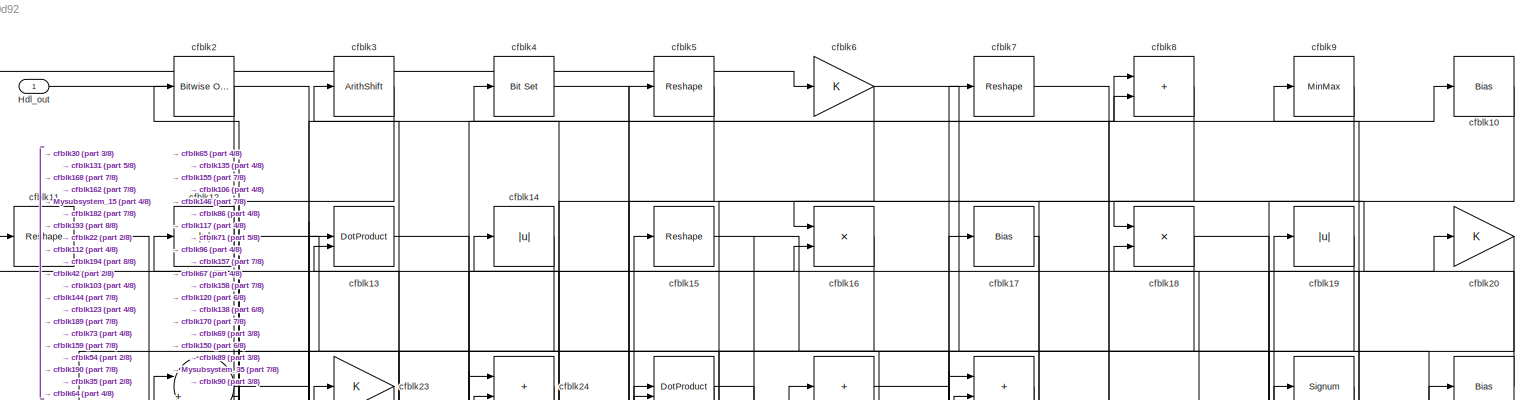
[diagram: root canvas - part 1/8, full width, top band]
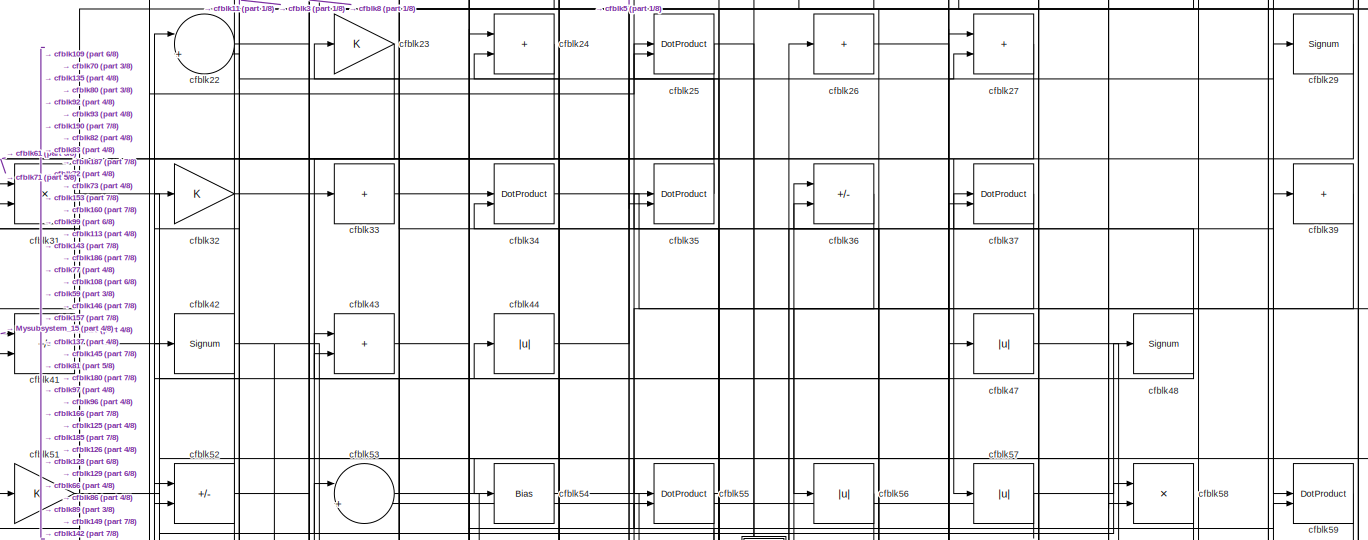
[diagram: root canvas - part 2/8, full width, top band]
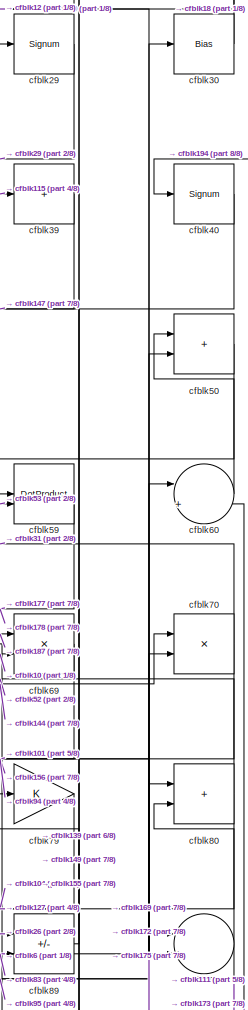
[diagram: root canvas - part 3/8, top right region]
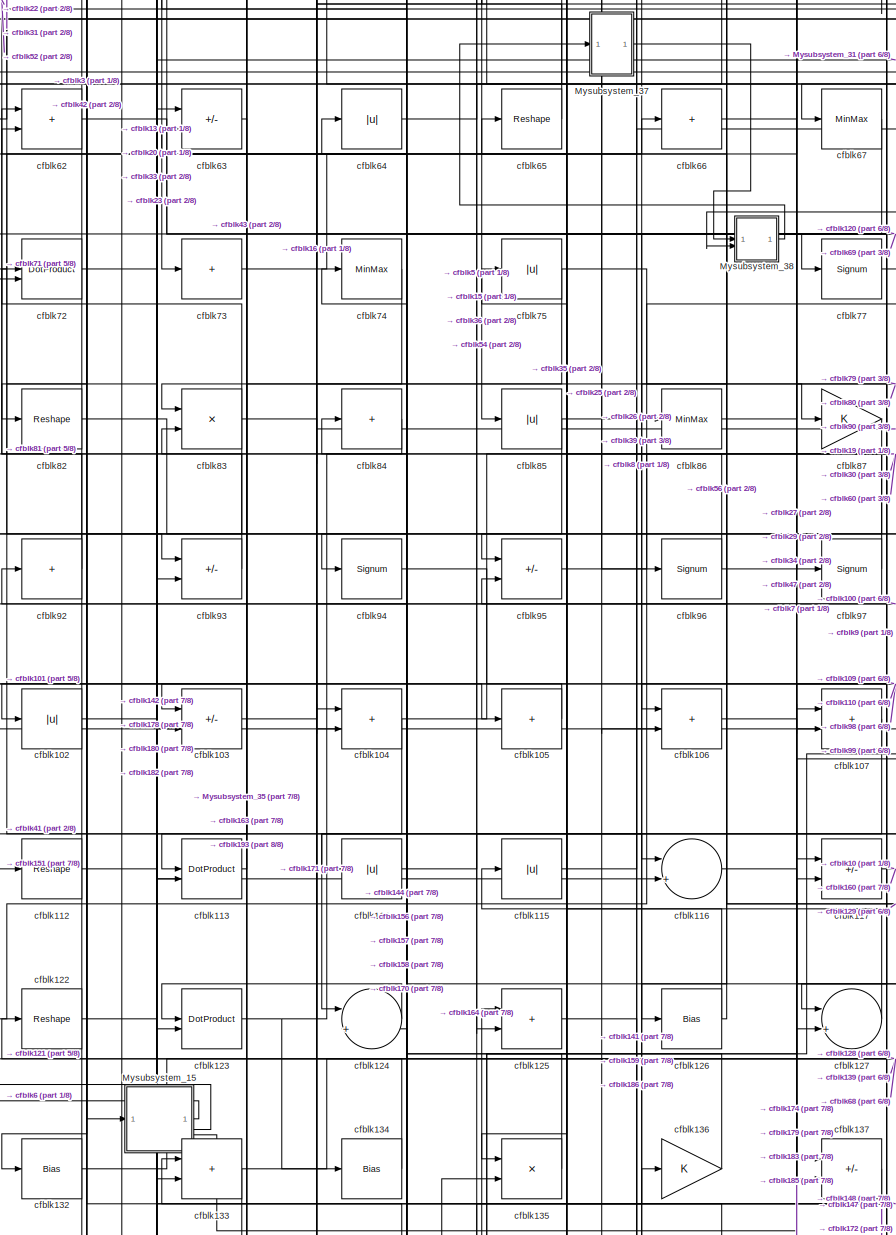
[diagram: root canvas - part 4/8, central region]
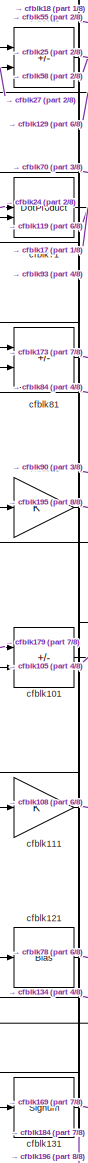
[diagram: root canvas - part 5/8, middle left region]
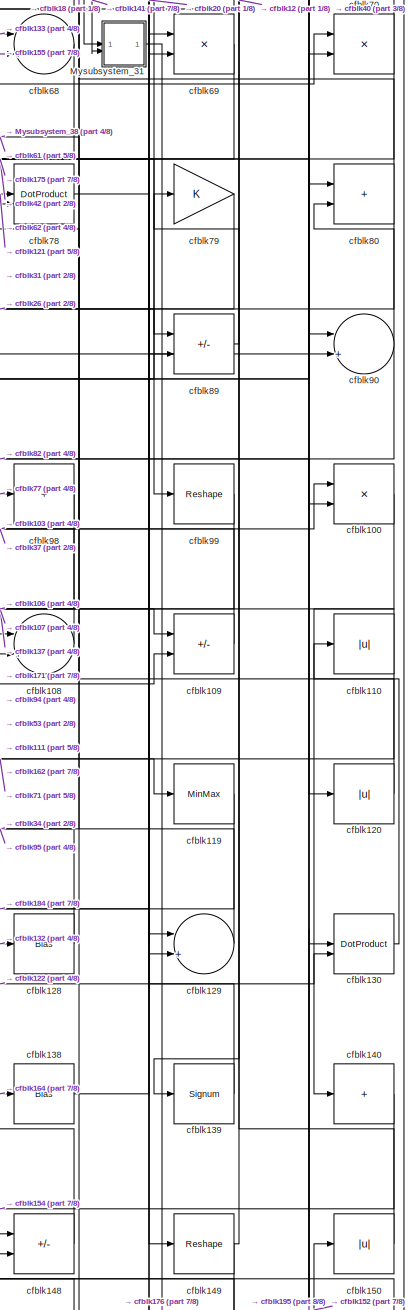
[diagram: root canvas - part 6/8, middle right region]
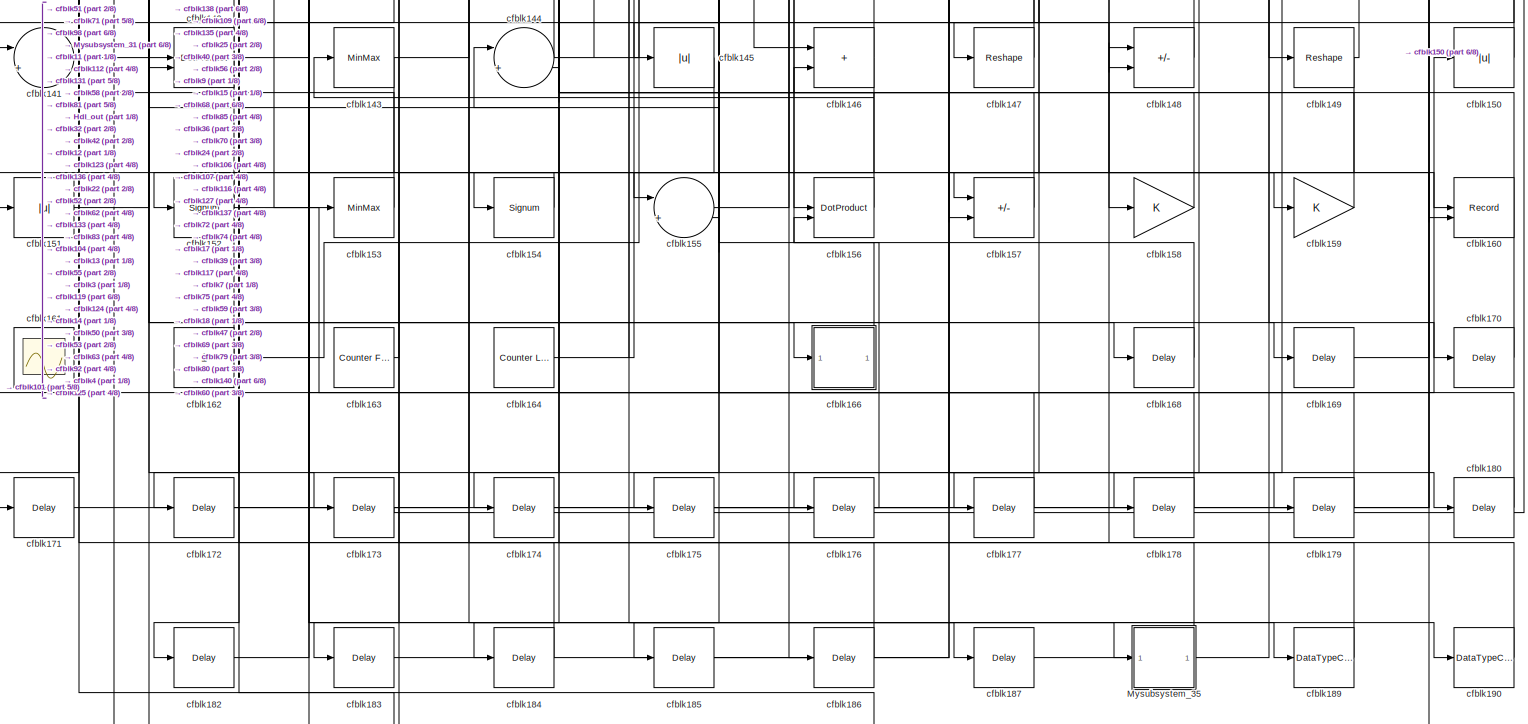
[diagram: root canvas - part 7/8, full width, bottom band]
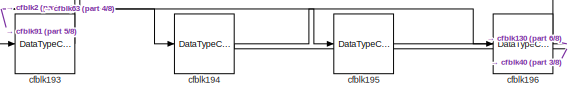
[diagram: root canvas - part 8/8, bottom center region]
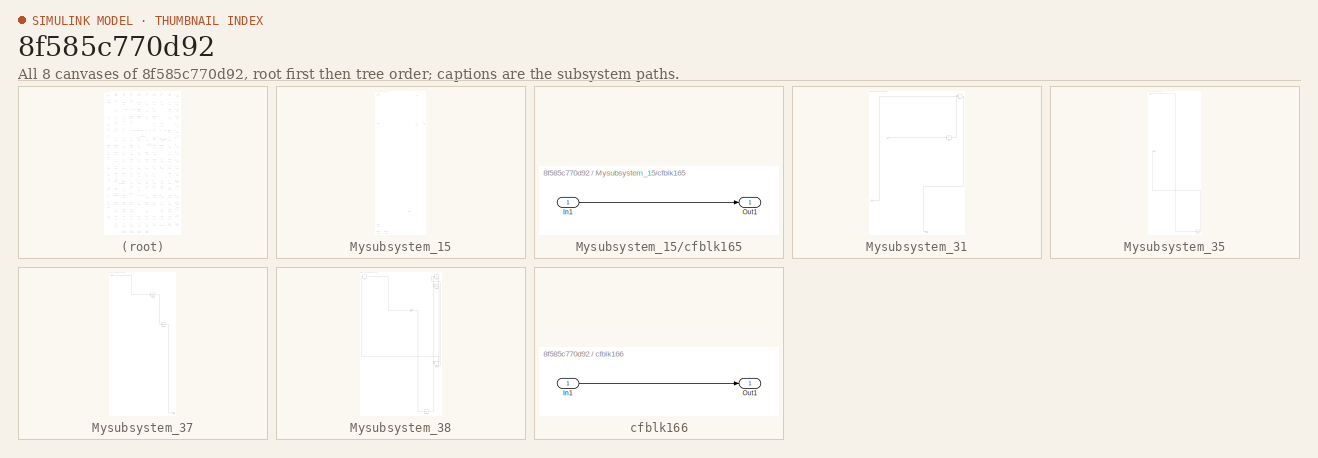
[diagram: thumbnail index - all 8 canvases of the model, root first then tree order]
MODEL slx_8f585c770d92
KIND model
CONFIG AbsTol = auto
CONFIG EnableMultiTasking = off
CONFIG FixedStep = auto
CONFIG MaxStep = auto
CONFIG MinStep = auto
CONFIG RelTol = 1e-3
CONFIG SampleTimeConstraint = Unconstrained
CONFIG SolverName = VariableStepAuto
CONFIG StartTime = 0.0
CONFIG StopTime = 10.0
BLOCK [Outport] Hdl_out
  OutDataTypeStr = uint8
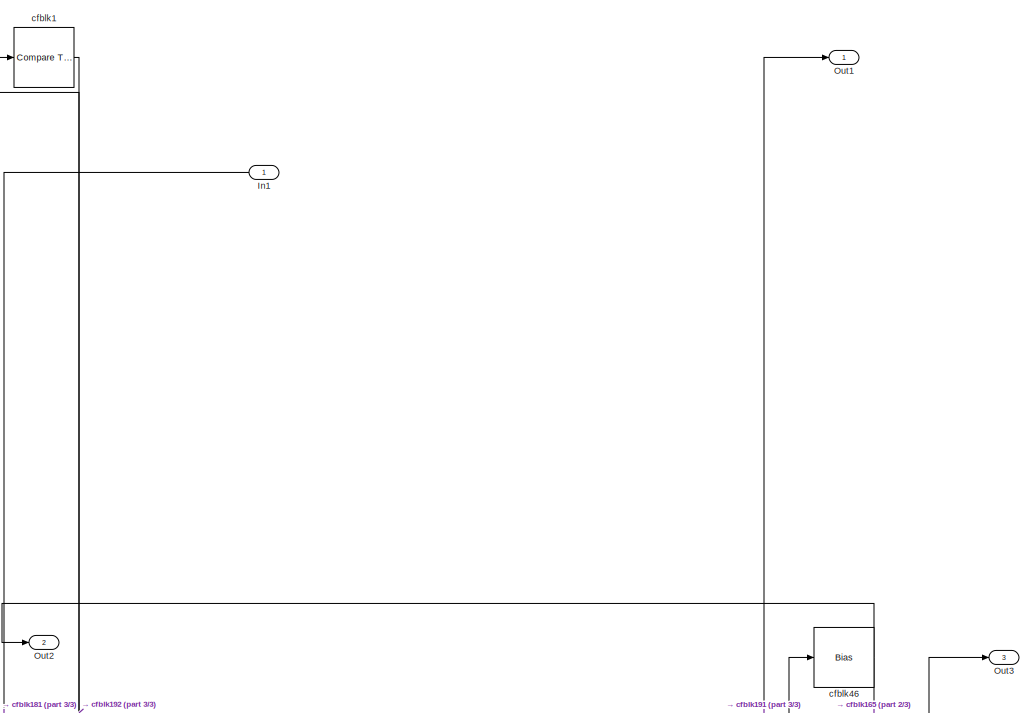
[diagram: Mysubsystem_15 - part 1/3, full width, top band]
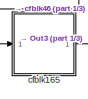
[diagram: Mysubsystem_15 - part 2/3, bottom center region]
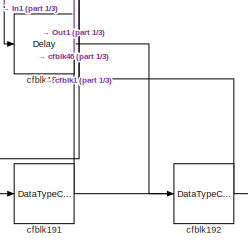
[diagram: Mysubsystem_15 - part 3/3, bottom left region]
BLOCK [SubSystem] Mysubsystem_15
  RTWFcnName = Mysubsystem_15
  RTWFcnNameOpts = User specified
  RTWFileNameOpts = Use function name
  RTWSystemCode = Reusable function
  TreatAsAtomicUnit = on
BLOCK [Inport] Mysubsystem_15/In1
BLOCK [Outport] Mysubsystem_15/Out1
BLOCK [Outport] Mysubsystem_15/Out2
  Port = 2
BLOCK [Outport] Mysubsystem_15/Out3
  Port = 3
BLOCK [Reference] Mysubsystem_15/cfblk1  REF=hdlsllib/Logic and Bit
Operations/Compare
To Zero
  SourceBlock = hdlsllib/Logic and Bit\nOperations/Compare\nTo Zero
  SourceType = Compare To Zero
BLOCK [SubSystem] Mysubsystem_15/cfblk165
  LibrarySourceBlock = hdlsllib/Ports &\nSubsystems/Subsystem
BLOCK [Inport] Mysubsystem_15/cfblk165/In1
BLOCK [Outport] Mysubsystem_15/cfblk165/Out1
BLOCK [Delay] Mysubsystem_15/cfblk181
  InputPortMap = u0
  SampleTime = 1
BLOCK [DataTypeConversion] Mysubsystem_15/cfblk191
  RndMeth = Floor
  SaturateOnIntegerOverflow = off
BLOCK [DataTypeConversion] Mysubsystem_15/cfblk192
  OutDataTypeStr = uint8
  RndMeth = Floor
  SaturateOnIntegerOverflow = off
BLOCK [Bias] Mysubsystem_15/cfblk46
  Bias = 0.0
  SaturateOnIntegerOverflow = off
BLOCK [SubSystem] Mysubsystem_31
  RTWFcnName = Mysubsystem_31
  RTWFcnNameOpts = User specified
  RTWFileNameOpts = Use function name
  RTWSystemCode = Reusable function
  TreatAsAtomicUnit = on
BLOCK [Inport] Mysubsystem_31/In1
BLOCK [Inport] Mysubsystem_31/In2
  Port = 2
BLOCK [Outport] Mysubsystem_31/Out1
BLOCK [Product] Mysubsystem_31/cfblk49
  Inputs = */
  RndMeth = Zero
  SaturateOnIntegerOverflow = on
BLOCK [Abs] Mysubsystem_31/cfblk88
  SaturateOnIntegerOverflow = off
BLOCK [SubSystem] Mysubsystem_35
  RTWFcnName = Mysubsystem_35
  RTWFcnNameOpts = User specified
  RTWFileNameOpts = Use function name
  RTWSystemCode = Reusable function
  TreatAsAtomicUnit = on
BLOCK [Inport] Mysubsystem_35/In1
BLOCK [Outport] Mysubsystem_35/Out1
BLOCK [Delay] Mysubsystem_35/cfblk188
  InputPortMap = u0
  SampleTime = 1
BLOCK [SubSystem] Mysubsystem_37
  RTWFcnName = Mysubsystem_37
  RTWFcnNameOpts = User specified
  RTWFileNameOpts = Use function name
  RTWSystemCode = Reusable function
  TreatAsAtomicUnit = on
BLOCK [Inport] Mysubsystem_37/In1
BLOCK [Outport] Mysubsystem_37/Out1
BLOCK [MinMax] Mysubsystem_37/cfblk45
BLOCK [MinMax] Mysubsystem_37/cfblk76
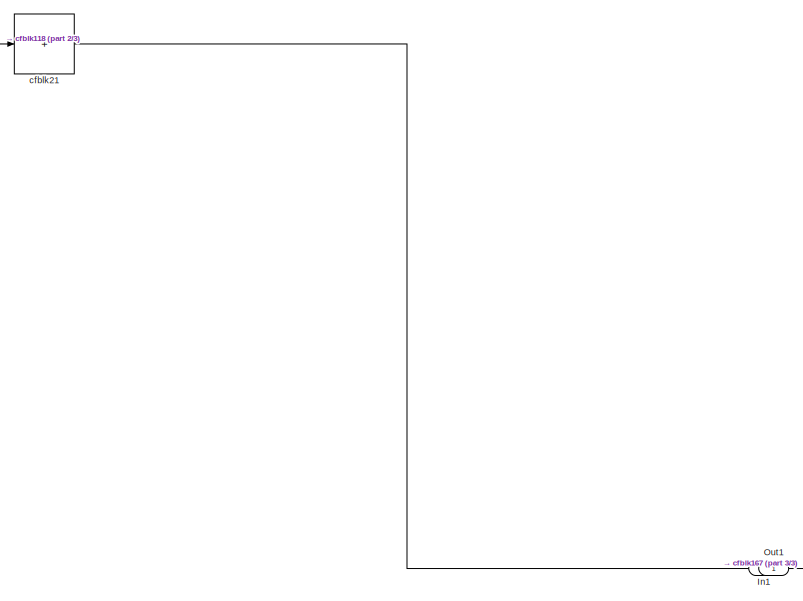
[diagram: Mysubsystem_38 - part 1/3, top center region]
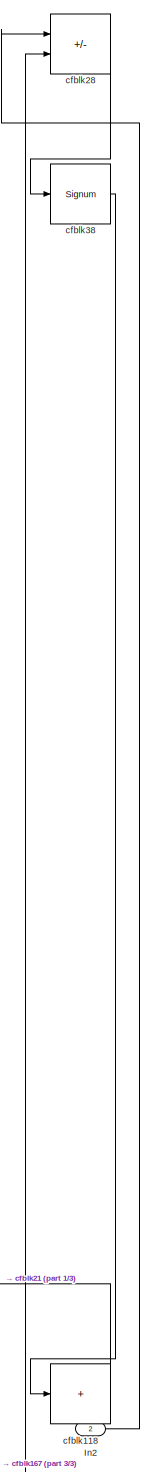
[diagram: Mysubsystem_38 - part 2/3, middle right region]
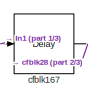
[diagram: Mysubsystem_38 - part 3/3, bottom right region]
BLOCK [SubSystem] Mysubsystem_38
  RTWFcnName = Mysubsystem_38
  RTWFcnNameOpts = User specified
  RTWFileNameOpts = Use function name
  RTWSystemCode = Reusable function
  TreatAsAtomicUnit = on
BLOCK [Inport] Mysubsystem_38/In1
BLOCK [Inport] Mysubsystem_38/In2
  Port = 2
BLOCK [Outport] Mysubsystem_38/Out1
BLOCK [Sum] Mysubsystem_38/cfblk118
  IconShape = rectangular
  Inputs = +
BLOCK [Delay] Mysubsystem_38/cfblk167
  InputPortMap = u0
  SampleTime = 1
BLOCK [Sum] Mysubsystem_38/cfblk21
  IconShape = rectangular
  Inputs = +
BLOCK [Sum] Mysubsystem_38/cfblk28
  IconShape = rectangular
  Inputs = +-
BLOCK [Signum] Mysubsystem_38/cfblk38
BLOCK [Bias] cfblk10
  Bias = 0.0
  SaturateOnIntegerOverflow = off
BLOCK [Product] cfblk100
  Inputs = */
  OutDataTypeStr = uint8
  RndMeth = Zero
  SaturateOnIntegerOverflow = on
BLOCK [Sum] cfblk101
  IconShape = rectangular
  Inputs = +-
  OutDataTypeStr = uint8
BLOCK [Abs] cfblk102
  OutDataTypeStr = uint8
  SaturateOnIntegerOverflow = off
BLOCK [Sum] cfblk103
  IconShape = rectangular
  Inputs = +-
  OutDataTypeStr = uint8
BLOCK [Sum] cfblk104
  IconShape = rectangular
  OutDataTypeStr = uint8
BLOCK [Sum] cfblk105
  IconShape = rectangular
  Inputs = +
  OutDataTypeStr = uint8
BLOCK [Sum] cfblk106
  IconShape = rectangular
  OutDataTypeStr = uint8
BLOCK [Sum] cfblk107
  IconShape = rectangular
  OutDataTypeStr = uint8
BLOCK [Sum] cfblk108
  Inputs = |++
  OutDataTypeStr = uint8
BLOCK [Sum] cfblk109
  IconShape = rectangular
  Inputs = +-
  OutDataTypeStr = uint8
BLOCK [Reshape] cfblk11
BLOCK [Abs] cfblk110
  OutDataTypeStr = uint8
  SaturateOnIntegerOverflow = off
BLOCK [Gain] cfblk111
  OutDataTypeStr = uint8
BLOCK [Reshape] cfblk112
BLOCK [DotProduct] cfblk113
  OutDataTypeStr = uint8
BLOCK [Abs] cfblk114
  OutDataTypeStr = uint8
  SaturateOnIntegerOverflow = off
BLOCK [Abs] cfblk115
  OutDataTypeStr = uint8
  SaturateOnIntegerOverflow = off
BLOCK [Sum] cfblk116
  Inputs = |++
  OutDataTypeStr = uint8
BLOCK [Sum] cfblk117
  IconShape = rectangular
  Inputs = +-
  OutDataTypeStr = uint8
BLOCK [MinMax] cfblk119
  OutDataTypeStr = uint8
BLOCK [Abs] cfblk12
  OutDataTypeStr = uint8
  SaturateOnIntegerOverflow = off
BLOCK [Abs] cfblk120
  OutDataTypeStr = uint8
  SaturateOnIntegerOverflow = off
BLOCK [Bias] cfblk121
  Bias = 0.0
  SaturateOnIntegerOverflow = off
BLOCK [Reshape] cfblk122
BLOCK [DotProduct] cfblk123
  OutDataTypeStr = uint8
BLOCK [Sum] cfblk124
  Inputs = |++
  OutDataTypeStr = uint8
BLOCK [Sum] cfblk125
  IconShape = rectangular
  OutDataTypeStr = uint8
BLOCK [Bias] cfblk126
  Bias = 0.0
  SaturateOnIntegerOverflow = off
BLOCK [Sum] cfblk127
  Inputs = |++
  OutDataTypeStr = uint8
BLOCK [Bias] cfblk128
  Bias = 0.0
  SaturateOnIntegerOverflow = off
BLOCK [Sum] cfblk129
  Inputs = |++
  OutDataTypeStr = uint8
BLOCK [DotProduct] cfblk13
  OutDataTypeStr = uint8
BLOCK [DotProduct] cfblk130
  OutDataTypeStr = uint8
BLOCK [Signum] cfblk131
BLOCK [Bias] cfblk132
  Bias = 0.0
  SaturateOnIntegerOverflow = off
BLOCK [Sum] cfblk133
  IconShape = rectangular
  OutDataTypeStr = uint8
BLOCK [Bias] cfblk134
  Bias = 0.0
  SaturateOnIntegerOverflow = off
BLOCK [Product] cfblk135
  Inputs = */
  OutDataTypeStr = uint8
  RndMeth = Zero
  SaturateOnIntegerOverflow = on
BLOCK [Gain] cfblk136
  OutDataTypeStr = uint8
BLOCK [Sum] cfblk137
  IconShape = rectangular
  Inputs = +-
  OutDataTypeStr = uint8
BLOCK [Bias] cfblk138
  Bias = 0.0
  SaturateOnIntegerOverflow = off
BLOCK [Signum] cfblk139
BLOCK [Abs] cfblk14
  OutDataTypeStr = uint8
  SaturateOnIntegerOverflow = off
BLOCK [Sum] cfblk140
  IconShape = rectangular
  Inputs = +
  OutDataTypeStr = uint8
BLOCK [Sum] cfblk141
  Inputs = |++
  OutDataTypeStr = uint8
BLOCK [DotProduct] cfblk142
  OutDataTypeStr = uint8
BLOCK [MinMax] cfblk143
  OutDataTypeStr = uint8
BLOCK [Sum] cfblk144
  Inputs = |++
  OutDataTypeStr = uint8
BLOCK [Abs] cfblk145
  OutDataTypeStr = uint8
  SaturateOnIntegerOverflow = off
BLOCK [Sum] cfblk146
  IconShape = rectangular
  OutDataTypeStr = uint8
BLOCK [Reshape] cfblk147
BLOCK [Sum] cfblk148
  IconShape = rectangular
  Inputs = +-
  OutDataTypeStr = uint8
BLOCK [Reshape] cfblk149
BLOCK [Reshape] cfblk15
BLOCK [Abs] cfblk150
  OutDataTypeStr = uint8
  SaturateOnIntegerOverflow = off
BLOCK [Abs] cfblk151
  OutDataTypeStr = uint8
  SaturateOnIntegerOverflow = off
BLOCK [Signum] cfblk152
BLOCK [MinMax] cfblk153
  OutDataTypeStr = uint8
BLOCK [Signum] cfblk154
BLOCK [Sum] cfblk155
  Inputs = |++
  OutDataTypeStr = uint8
BLOCK [DotProduct] cfblk156
  OutDataTypeStr = uint8
BLOCK [Sum] cfblk157
  IconShape = rectangular
  Inputs = +-
  OutDataTypeStr = uint8
BLOCK [Gain] cfblk158
  OutDataTypeStr = uint8
BLOCK [Gain] cfblk159
  OutDataTypeStr = uint8
BLOCK [Product] cfblk16
  Inputs = */
  OutDataTypeStr = uint8
  RndMeth = Zero
  SaturateOnIntegerOverflow = on
BLOCK [Record] cfblk160
  CompatibilityTag = XY
  FileSettingsInternal = {"entries":[{"content":{"excelSettings":{"content":{},"type":"Streamout.ExcelSettings"}},"type":"Streamout.FileSettingStorage","uuid":""}],"packageUris":["http:\/\/schema.mathworks.com\/mf0\/streamout_blocks\/R2020a"],"version":"1.0"}
  Layout = [1 1]
  SignalsInternal = {"entries":[{"content":{"signals":[{"content":{"blockPath":[],"dimensions":[1],"domain":"","lineColor":"#a2142f","plots":[1],"port":1,"signalID":58101,"signalName":"cfblk117"},"type":"RecordBlkView.Signal","uuid":""},{"content":{"blockPath":[],"dimensions":[1],"domain":"","lineColor":"#139fff","plots":[1],"port":2,"signalID":58104,"signalName":"cfblk42"},"type":"RecordBlkView.Signal","uuid":""}]},...<+143ch>
  VisualizationBindings = {"xyplotplugin":{"info":[{"series":[{"bindingParametersList":[{"parameter":"X-Axis","signalID":58101,"signalName":"cfblk117"},{"parameter":"Y-Axis","signalID":58104,"signalName":"cfblk42"}],"seriesID":28550}],"subplotID":1}]}}
  st = -1
BLOCK [Scope] cfblk161
  Floating = on
  NumInputPorts = 1
  ScopeSpecificationString = Simulink.scopes.TimeScopeBlockCfg('CurrentConfiguration', extmgr.ConfigurationSet(extmgr.Configuration('Core','General UI',true,'FigureColor',[0.156862745098039 0.156862745098039 0.156862745098039]),extmgr.Configuration('Core','Source UI',true),extmgr.Configuration('Sources','WiredSimulink',true,'DataLoggingVariableName','ScopeData1','DataLoggingSaveFormat','StructureWithTime','DataLoggingLimitDat...<+2713ch>
BLOCK [Constant] cfblk162
  OutDataTypeStr = uint8
  SampleTime = -1
BLOCK [Reference] cfblk163  REF=hdlsllib/Sources/Counter
Free-Running
  SourceBlock = hdlsllib/Sources/Counter\nFree-Running
  SourceType = Counter Free-Running
BLOCK [Reference] cfblk164  REF=hdlsllib/Sources/Counter
Limited
  SourceBlock = hdlsllib/Sources/Counter\nLimited
  SourceType = Counter Limited
BLOCK [SubSystem] cfblk166
  LibrarySourceBlock = hdlsllib/Ports &\nSubsystems/Subsystem
BLOCK [Inport] cfblk166/In1
BLOCK [Outport] cfblk166/Out1
BLOCK [Delay] cfblk168
  InputPortMap = u0
  SampleTime = 1
BLOCK [Delay] cfblk169
  InputPortMap = u0
  SampleTime = 1
BLOCK [Bias] cfblk17
  Bias = 0.0
  SaturateOnIntegerOverflow = off
BLOCK [Delay] cfblk170
  InputPortMap = u0
  SampleTime = 1
BLOCK [Delay] cfblk171
  InputPortMap = u0
  SampleTime = 1
BLOCK [Delay] cfblk172
  InputPortMap = u0
  SampleTime = 1
BLOCK [Delay] cfblk173
  InputPortMap = u0
  SampleTime = 1
BLOCK [Delay] cfblk174
  InputPortMap = u0
  SampleTime = 1
BLOCK [Delay] cfblk175
  InputPortMap = u0
  SampleTime = 1
BLOCK [Delay] cfblk176
  InputPortMap = u0
  SampleTime = 1
BLOCK [Delay] cfblk177
  InputPortMap = u0
  SampleTime = 1
BLOCK [Delay] cfblk178
  InputPortMap = u0
  SampleTime = 1
BLOCK [Delay] cfblk179
  InputPortMap = u0
  SampleTime = 1
BLOCK [Product] cfblk18
  Inputs = */
  OutDataTypeStr = uint8
  RndMeth = Zero
  SaturateOnIntegerOverflow = on
BLOCK [Delay] cfblk180
  InputPortMap = u0
  SampleTime = 1
BLOCK [Delay] cfblk182
  InputPortMap = u0
  SampleTime = 1
BLOCK [Delay] cfblk183
  InputPortMap = u0
  SampleTime = 1
BLOCK [Delay] cfblk184
  InputPortMap = u0
  SampleTime = 1
BLOCK [Delay] cfblk185
  InputPortMap = u0
  SampleTime = 1
BLOCK [Delay] cfblk186
  InputPortMap = u0
  SampleTime = 1
BLOCK [Delay] cfblk187
  InputPortMap = u0
  SampleTime = 1
BLOCK [DataTypeConversion] cfblk189
  OutDataTypeStr = uint8
  RndMeth = Floor
  SaturateOnIntegerOverflow = off
BLOCK [Abs] cfblk19
  OutDataTypeStr = uint8
  SaturateOnIntegerOverflow = off
BLOCK [DataTypeConversion] cfblk190
  OutDataTypeStr = uint8
  RndMeth = Floor
  SaturateOnIntegerOverflow = off
BLOCK [DataTypeConversion] cfblk193
  OutDataTypeStr = uint8
  RndMeth = Floor
  SaturateOnIntegerOverflow = off
BLOCK [DataTypeConversion] cfblk194
  OutDataTypeStr = uint8
  RndMeth = Floor
  SaturateOnIntegerOverflow = off
BLOCK [DataTypeConversion] cfblk195
  OutDataTypeStr = uint8
  RndMeth = Floor
  SaturateOnIntegerOverflow = off
BLOCK [DataTypeConversion] cfblk196
  OutDataTypeStr = uint8
  RndMeth = Floor
  SaturateOnIntegerOverflow = off
BLOCK [Reference] cfblk2  REF=simulink/Logic and Bit
Operations/Bitwise
Operator
  LibrarySourceBlock = hdlsllib/Logic and Bit\nOperations/Bitwise\nOperator
  SourceBlock = simulink/Logic and Bit\nOperations/Bitwise\nOperator
  SourceType = Bitwise Operator
BLOCK [Gain] cfblk20
  OutDataTypeStr = uint8
BLOCK [Sum] cfblk22
  Inputs = |++
  OutDataTypeStr = uint8
BLOCK [Gain] cfblk23
  OutDataTypeStr = uint8
BLOCK [Sum] cfblk24
  IconShape = rectangular
  OutDataTypeStr = uint8
BLOCK [DotProduct] cfblk25
  OutDataTypeStr = uint8
BLOCK [Sum] cfblk26
  IconShape = rectangular
  Inputs = +
  OutDataTypeStr = uint8
BLOCK [Sum] cfblk27
  IconShape = rectangular
  OutDataTypeStr = uint8
BLOCK [Signum] cfblk29
BLOCK [ArithShift] cfblk3
  BitShiftNumber = 8
  InputPortMap = u0
BLOCK [Bias] cfblk30
  Bias = 0.0
  SaturateOnIntegerOverflow = off
BLOCK [Product] cfblk31
  Inputs = */
  OutDataTypeStr = uint8
  RndMeth = Zero
  SaturateOnIntegerOverflow = on
BLOCK [Gain] cfblk32
  OutDataTypeStr = uint8
BLOCK [Sum] cfblk33
  IconShape = rectangular
  Inputs = +
  OutDataTypeStr = uint8
BLOCK [DotProduct] cfblk34
  OutDataTypeStr = uint8
BLOCK [DotProduct] cfblk35
  OutDataTypeStr = uint8
BLOCK [Sum] cfblk36
  IconShape = rectangular
  Inputs = +-
  OutDataTypeStr = uint8
BLOCK [DotProduct] cfblk37
  OutDataTypeStr = uint8
BLOCK [Sum] cfblk39
  IconShape = rectangular
  Inputs = +
  OutDataTypeStr = uint8
BLOCK [Reference] cfblk4  REF=simulink/Logic and Bit
Operations/Bit Set
  LibrarySourceBlock = hdlsllib/Logic and Bit\nOperations/Bit Set
  SourceBlock = simulink/Logic and Bit\nOperations/Bit Set
  SourceType = Bit Set
BLOCK [Signum] cfblk40
BLOCK [Sum] cfblk41
  IconShape = rectangular
  Inputs = +-
  OutDataTypeStr = uint8
BLOCK [Signum] cfblk42
BLOCK [Sum] cfblk43
  IconShape = rectangular
  OutDataTypeStr = uint8
BLOCK [Abs] cfblk44
  OutDataTypeStr = uint8
  SaturateOnIntegerOverflow = off
BLOCK [Abs] cfblk47
  OutDataTypeStr = uint8
  SaturateOnIntegerOverflow = off
BLOCK [Signum] cfblk48
BLOCK [Reshape] cfblk5
BLOCK [Sum] cfblk50
  IconShape = rectangular
  OutDataTypeStr = uint8
BLOCK [Gain] cfblk51
  OutDataTypeStr = uint8
BLOCK [Sum] cfblk52
  IconShape = rectangular
  Inputs = +-
  OutDataTypeStr = uint8
BLOCK [Sum] cfblk53
  Inputs = |++
  OutDataTypeStr = uint8
BLOCK [Bias] cfblk54
  Bias = 0.0
  SaturateOnIntegerOverflow = off
BLOCK [DotProduct] cfblk55
  OutDataTypeStr = uint8
BLOCK [Abs] cfblk56
  OutDataTypeStr = uint8
  SaturateOnIntegerOverflow = off
BLOCK [Abs] cfblk57
  OutDataTypeStr = uint8
  SaturateOnIntegerOverflow = off
BLOCK [Product] cfblk58
  Inputs = */
  OutDataTypeStr = uint8
  RndMeth = Zero
  SaturateOnIntegerOverflow = on
BLOCK [DotProduct] cfblk59
  OutDataTypeStr = uint8
BLOCK [Gain] cfblk6
  OutDataTypeStr = uint8
BLOCK [Sum] cfblk60
  Inputs = |++
  OutDataTypeStr = uint8
BLOCK [Sum] cfblk61
  IconShape = rectangular
  Inputs = +-
  OutDataTypeStr = uint8
BLOCK [Sum] cfblk62
  IconShape = rectangular
  OutDataTypeStr = uint8
BLOCK [Sum] cfblk63
  IconShape = rectangular
  Inputs = +-
  OutDataTypeStr = uint8
BLOCK [Abs] cfblk64
  OutDataTypeStr = uint8
  SaturateOnIntegerOverflow = off
BLOCK [Reshape] cfblk65
BLOCK [Sum] cfblk66
  IconShape = rectangular
  Inputs = +
  OutDataTypeStr = uint8
BLOCK [MinMax] cfblk67
  OutDataTypeStr = uint8
BLOCK [Sum] cfblk68
  Inputs = |++
  OutDataTypeStr = uint8
BLOCK [Product] cfblk69
  Inputs = */
  OutDataTypeStr = uint8
  RndMeth = Zero
  SaturateOnIntegerOverflow = on
BLOCK [Reshape] cfblk7
BLOCK [Product] cfblk70
  Inputs = */
  OutDataTypeStr = uint8
  RndMeth = Zero
  SaturateOnIntegerOverflow = on
BLOCK [DotProduct] cfblk71
  OutDataTypeStr = uint8
BLOCK [DotProduct] cfblk72
  OutDataTypeStr = uint8
BLOCK [Sum] cfblk73
  IconShape = rectangular
  Inputs = +
  OutDataTypeStr = uint8
BLOCK [MinMax] cfblk74
  OutDataTypeStr = uint8
BLOCK [Abs] cfblk75
  OutDataTypeStr = uint8
  SaturateOnIntegerOverflow = off
BLOCK [Signum] cfblk77
BLOCK [DotProduct] cfblk78
  OutDataTypeStr = uint8
BLOCK [Gain] cfblk79
  OutDataTypeStr = uint8
BLOCK [Sum] cfblk8
  IconShape = rectangular
  OutDataTypeStr = uint8
BLOCK [Sum] cfblk80
  IconShape = rectangular
  OutDataTypeStr = uint8
BLOCK [Sum] cfblk81
  IconShape = rectangular
  Inputs = +-
  OutDataTypeStr = uint8
BLOCK [Reshape] cfblk82
BLOCK [Product] cfblk83
  Inputs = */
  OutDataTypeStr = uint8
  RndMeth = Zero
  SaturateOnIntegerOverflow = on
BLOCK [Sum] cfblk84
  IconShape = rectangular
  Inputs = +
  OutDataTypeStr = uint8
BLOCK [Abs] cfblk85
  OutDataTypeStr = uint8
  SaturateOnIntegerOverflow = off
BLOCK [MinMax] cfblk86
  OutDataTypeStr = uint8
BLOCK [Gain] cfblk87
  OutDataTypeStr = uint8
BLOCK [Sum] cfblk89
  IconShape = rectangular
  Inputs = +-
  OutDataTypeStr = uint8
BLOCK [MinMax] cfblk9
  OutDataTypeStr = uint8
BLOCK [Sum] cfblk90
  Inputs = |++
  OutDataTypeStr = uint8
BLOCK [Gain] cfblk91
  OutDataTypeStr = uint8
BLOCK [Sum] cfblk92
  IconShape = rectangular
  Inputs = +
  OutDataTypeStr = uint8
BLOCK [Sum] cfblk93
  IconShape = rectangular
  Inputs = +-
  OutDataTypeStr = uint8
BLOCK [Signum] cfblk94
BLOCK [Sum] cfblk95
  IconShape = rectangular
  Inputs = +-
  OutDataTypeStr = uint8
BLOCK [Signum] cfblk96
BLOCK [Signum] cfblk97
BLOCK [Sum] cfblk98
  IconShape = rectangular
  Inputs = +
  OutDataTypeStr = uint8
BLOCK [Reshape] cfblk99
LINE Mysubsystem_15/In1:1 -> Mysubsystem_15/cfblk181:1
LINE Mysubsystem_15/cfblk165/In1:1 -> Mysubsystem_15/cfblk165/Out1:1
LINE Mysubsystem_15/cfblk165:1 -> Mysubsystem_15/Out3:1
LINE Mysubsystem_15/cfblk181:1 -> Mysubsystem_15/cfblk192:1
NET Mysubsystem_15/cfblk191:1 -> Mysubsystem_15/Out1:1, Mysubsystem_15/cfblk46:1
LINE Mysubsystem_15/cfblk192:1 -> Mysubsystem_15/cfblk1:1
LINE Mysubsystem_15/cfblk1:1 -> Mysubsystem_15/cfblk191:1
NET Mysubsystem_15/cfblk46:1 -> Mysubsystem_15/Out2:1, Mysubsystem_15/cfblk165:1
LINE Mysubsystem_15:1 -> cfblk6:1
LINE Mysubsystem_15:2 -> cfblk41:1
LINE Mysubsystem_15:3 -> cfblk47:1
LINE Mysubsystem_31/In1:1 -> Mysubsystem_31/cfblk88:1
LINE Mysubsystem_31/In2:1 -> Mysubsystem_31/cfblk49:2
LINE Mysubsystem_31/cfblk49:1 -> Mysubsystem_31/Out1:1
LINE Mysubsystem_31/cfblk88:1 -> Mysubsystem_31/cfblk49:1
LINE Mysubsystem_31:1 -> cfblk176:1
LINE Mysubsystem_35/In1:1 -> Mysubsystem_35/cfblk188:1
LINE Mysubsystem_35/cfblk188:1 -> Mysubsystem_35/Out1:1
LINE Mysubsystem_35:1 -> cfblk83:2
LINE Mysubsystem_37/In1:1 -> Mysubsystem_37/cfblk45:1
LINE Mysubsystem_37/cfblk45:1 -> Mysubsystem_37/cfblk76:1
LINE Mysubsystem_37/cfblk76:1 -> Mysubsystem_37/Out1:1
LINE Mysubsystem_37:1 -> Mysubsystem_38:1
LINE Mysubsystem_38/In1:1 -> Mysubsystem_38/cfblk167:1
LINE Mysubsystem_38/In2:1 -> Mysubsystem_38/cfblk28:1
LINE Mysubsystem_38/cfblk118:1 -> Mysubsystem_38/cfblk21:1
LINE Mysubsystem_38/cfblk167:1 -> Mysubsystem_38/cfblk28:2
LINE Mysubsystem_38/cfblk21:1 -> Mysubsystem_38/Out1:1
LINE Mysubsystem_38/cfblk28:1 -> Mysubsystem_38/cfblk38:1
LINE Mysubsystem_38/cfblk38:1 -> Mysubsystem_38/cfblk118:1
LINE Mysubsystem_38:1 -> Mysubsystem_37:1
LINE cfblk100:1 -> cfblk140:1
LINE cfblk101:1 -> cfblk105:1
LINE cfblk102:1 -> cfblk116:2
LINE cfblk103:1 -> cfblk100:1
NET cfblk104:1 -> cfblk114:1, cfblk60:1
LINE cfblk105:1 -> cfblk102:1
LINE cfblk106:1 -> cfblk148:2
LINE cfblk107:1 -> cfblk124:1
LINE cfblk108:1 -> cfblk37:1
NET cfblk109:1 -> cfblk31:1, cfblk78:2
LINE cfblk10:1 -> cfblk69:2
NET cfblk110:1 -> cfblk106:1, cfblk133:2
LINE cfblk111:1 -> cfblk108:2
LINE cfblk112:1 -> cfblk13:1
LINE cfblk113:1 -> cfblk43:1
LINE cfblk114:1 -> cfblk116:1
LINE cfblk115:1 -> cfblk39:1
LINE cfblk116:1 -> cfblk179:1
NET cfblk117:1 -> cfblk10:1, cfblk160:1
LINE cfblk119:1 -> cfblk184:1
LINE cfblk11:1 -> cfblk168:1
LINE cfblk120:1 -> cfblk18:2
LINE cfblk121:1 -> cfblk78:1
LINE cfblk122:1 -> cfblk66:1
NET cfblk123:1 -> cfblk134:1, cfblk16:2, cfblk19:1
LINE cfblk124:1 -> cfblk123:1
LINE cfblk125:1 -> cfblk186:1
NET cfblk126:1 -> cfblk36:2, cfblk65:1
LINE cfblk127:1 -> cfblk115:1
NET cfblk128:1 -> cfblk34:2, cfblk95:2
NET cfblk129:1 -> Mysubsystem_38:2, cfblk61:1
NET cfblk12:1 -> Mysubsystem_35:1, cfblk90:1
LINE cfblk130:1 -> cfblk110:1
LINE cfblk131:1 -> cfblk169:1
LINE cfblk132:1 -> cfblk128:1
NET cfblk133:1 -> cfblk141:2, cfblk68:1
LINE cfblk134:1 -> cfblk121:1
NET cfblk135:1 -> cfblk52:2, cfblk84:1
LINE cfblk136:1 -> cfblk64:1
LINE cfblk137:1 -> cfblk172:1
NET cfblk138:1 -> cfblk130:2, cfblk20:1
LINE cfblk139:1 -> cfblk122:1
LINE cfblk13:1 -> cfblk189:1
LINE cfblk140:1 -> cfblk154:1
LINE cfblk141:1 -> Mysubsystem_31:2
LINE cfblk142:1 -> cfblk136:1
NET cfblk143:1 -> cfblk151:1, cfblk55:2
NET cfblk144:1 -> cfblk135:2, cfblk3:1, cfblk70:1
LINE cfblk145:1 -> cfblk174:1
NET cfblk146:1 -> cfblk183:1, cfblk24:2
NET cfblk147:1 -> cfblk72:1, cfblk74:1
LINE cfblk148:1 -> cfblk75:1
NET cfblk149:1 -> cfblk157:2, cfblk79:1
LINE cfblk14:1 -> cfblk182:1
LINE cfblk150:1 -> cfblk12:1
LINE cfblk151:1 -> cfblk112:1
LINE cfblk152:1 -> cfblk150:1
LINE cfblk153:1 -> cfblk51:1
LINE cfblk154:1 -> cfblk152:1
LINE cfblk155:1 -> cfblk68:2
NET cfblk156:1 -> cfblk143:1, cfblk63:2
NET cfblk157:1 -> cfblk53:1, cfblk62:2
LINE cfblk158:1 -> cfblk92:1
NET cfblk159:1 -> cfblk146:2, cfblk14:1
NET cfblk15:1 -> cfblk106:2, cfblk117:1, cfblk146:1
NET cfblk162:1 -> Hdl_out:1, cfblk109:2
LINE cfblk163:1 -> cfblk133:1
NET cfblk164:1 -> cfblk125:1, cfblk138:1
LINE cfblk166/In1:1 -> cfblk166/Out1:1
LINE cfblk166:1 -> cfblk36:1
LINE cfblk168:1 -> cfblk142:1
LINE cfblk169:1 -> cfblk70:2
LINE cfblk16:1 -> cfblk103:1
LINE cfblk170:1 -> cfblk124:2
LINE cfblk171:1 -> cfblk104:1
LINE cfblk172:1 -> cfblk50:2
LINE cfblk173:1 -> cfblk60:2
LINE cfblk174:1 -> cfblk107:1
LINE cfblk175:1 -> cfblk80:1
LINE cfblk176:1 -> cfblk156:2
LINE cfblk177:1 -> cfblk144:1
LINE cfblk178:1 -> cfblk63:1
LINE cfblk179:1 -> cfblk101:1
LINE cfblk17:1 -> cfblk157:1
LINE cfblk180:1 -> cfblk25:2
LINE cfblk182:1 -> cfblk123:2
LINE cfblk183:1 -> cfblk117:2
LINE cfblk184:1 -> cfblk71:2
LINE cfblk185:1 -> cfblk127:2
LINE cfblk186:1 -> cfblk24:1
LINE cfblk187:1 -> cfblk69:1
LINE cfblk189:1 -> cfblk4:1
NET cfblk18:1 -> cfblk131:1, cfblk170:1
NET cfblk190:1 -> cfblk148:1, cfblk32:1
LINE cfblk193:1 -> cfblk2:1
NET cfblk194:1 -> cfblk196:1, cfblk40:1
LINE cfblk195:1 -> cfblk130:1
LINE cfblk196:1 -> cfblk91:1
NET cfblk19:1 -> cfblk135:1, cfblk86:1
LINE cfblk20:1 -> cfblk103:2
LINE cfblk22:1 -> cfblk166:1
LINE cfblk23:1 -> cfblk73:1
LINE cfblk24:1 -> cfblk71:1
NET cfblk25:1 -> cfblk82:1, cfblk96:1
NET cfblk26:1 -> cfblk129:2, cfblk89:1
NET cfblk27:1 -> cfblk57:1, cfblk61:2
NET cfblk29:1 -> cfblk59:1, cfblk72:2
LINE cfblk2:1 -> cfblk194:1
LINE cfblk30:1 -> cfblk18:1
NET cfblk31:1 -> cfblk41:2, cfblk93:1
LINE cfblk32:1 -> cfblk58:2
LINE cfblk33:1 -> cfblk34:1
LINE cfblk34:1 -> cfblk97:1
LINE cfblk35:1 -> cfblk11:1
LINE cfblk36:1 -> cfblk85:1
LINE cfblk37:1 -> cfblk56:1
LINE cfblk39:1 -> cfblk147:1
NET cfblk3:1 -> Mysubsystem_15:1, cfblk22:2
NET cfblk40:1 -> cfblk139:1, cfblk155:2
NET cfblk41:1 -> cfblk113:2, cfblk55:1
NET cfblk42:1 -> cfblk153:1, cfblk160:2, cfblk8:2, cfblk99:1
LINE cfblk43:1 -> cfblk77:1
LINE cfblk44:1 -> cfblk27:2
LINE cfblk47:1 -> cfblk149:1
NET cfblk48:1 -> cfblk23:1, cfblk43:2
LINE cfblk4:1 -> cfblk190:1
LINE cfblk50:1 -> cfblk144:2
NET cfblk51:1 -> cfblk37:2, cfblk44:1
LINE cfblk52:1 -> cfblk187:1
NET cfblk53:1 -> cfblk108:1, cfblk59:2
LINE cfblk54:1 -> cfblk137:1
NET cfblk55:1 -> cfblk145:1, cfblk81:1
NET cfblk56:1 -> cfblk125:2, cfblk185:1
NET cfblk57:1 -> cfblk48:1, cfblk53:2
LINE cfblk58:1 -> cfblk142:2
NET cfblk59:1 -> cfblk177:1, cfblk178:1
LINE cfblk5:1 -> cfblk35:2
LINE cfblk60:1 -> cfblk50:1
NET cfblk61:1 -> cfblk25:1, cfblk58:1
NET cfblk62:1 -> cfblk120:1, cfblk180:1
LINE cfblk63:1 -> cfblk193:1
LINE cfblk64:1 -> cfblk5:1
LINE cfblk65:1 -> cfblk15:1
LINE cfblk66:1 -> cfblk29:1
LINE cfblk67:1 -> cfblk126:1
LINE cfblk68:1 -> cfblk175:1
LINE cfblk69:1 -> cfblk94:1
NET cfblk6:1 -> cfblk16:1, cfblk89:2
NET cfblk70:1 -> cfblk101:2, cfblk156:1, cfblk31:2
NET cfblk71:1 -> cfblk119:1, cfblk17:1, cfblk93:2
LINE cfblk72:1 -> cfblk33:1
NET cfblk73:1 -> cfblk26:1, cfblk8:1
LINE cfblk74:1 -> cfblk83:1
NET cfblk75:1 -> cfblk113:1, cfblk87:1
LINE cfblk77:1 -> cfblk98:1
LINE cfblk78:1 -> cfblk129:1
LINE cfblk79:1 -> cfblk127:1
LINE cfblk7:1 -> cfblk158:1
NET cfblk80:1 -> cfblk104:2, cfblk52:1
LINE cfblk81:1 -> cfblk173:1
NET cfblk82:1 -> Mysubsystem_31:1, cfblk100:2
NET cfblk83:1 -> cfblk132:1, cfblk42:1, cfblk90:2
LINE cfblk84:1 -> cfblk81:2
NET cfblk85:1 -> cfblk141:1, cfblk159:1
LINE cfblk86:1 -> cfblk27:1
LINE cfblk87:1 -> cfblk95:1
LINE cfblk89:1 -> cfblk9:1
LINE cfblk8:1 -> cfblk54:1
NET cfblk90:1 -> cfblk111:1, cfblk80:2
LINE cfblk91:1 -> cfblk195:1
LINE cfblk92:1 -> cfblk22:1
LINE cfblk93:1 -> cfblk62:1
LINE cfblk94:1 -> cfblk109:1
LINE cfblk95:1 -> cfblk30:1
NET cfblk96:1 -> cfblk13:2, cfblk7:1
LINE cfblk97:1 -> cfblk35:1
NET cfblk98:1 -> cfblk137:2, cfblk171:1
LINE cfblk99:1 -> cfblk107:2
NET cfblk9:1 -> cfblk155:1, cfblk67:1
note: NET lines group one-source signal fan-out (src -> all destinations, sorted); 1:1 wires keep LINE
